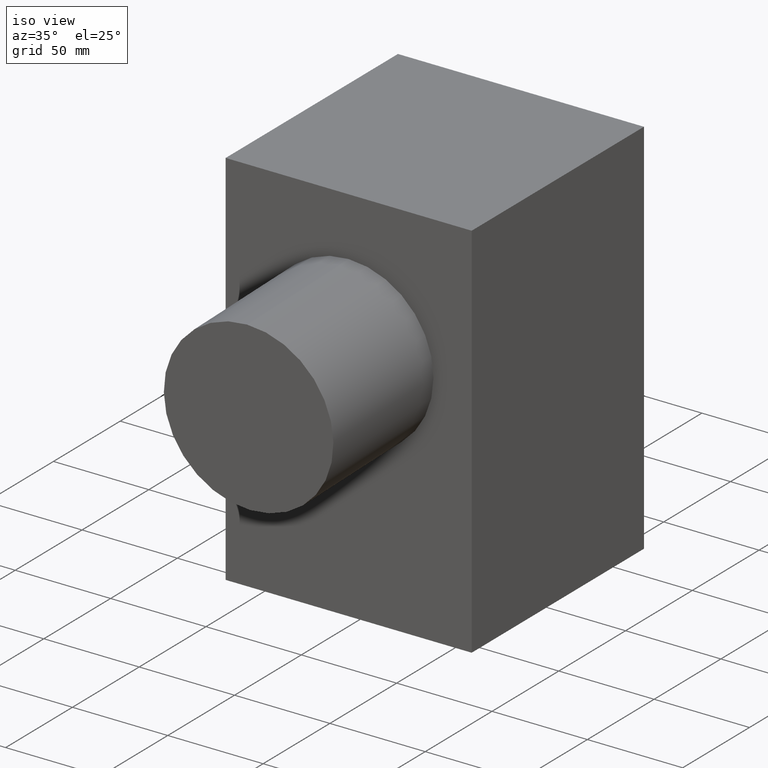
[diagram: clean part render]
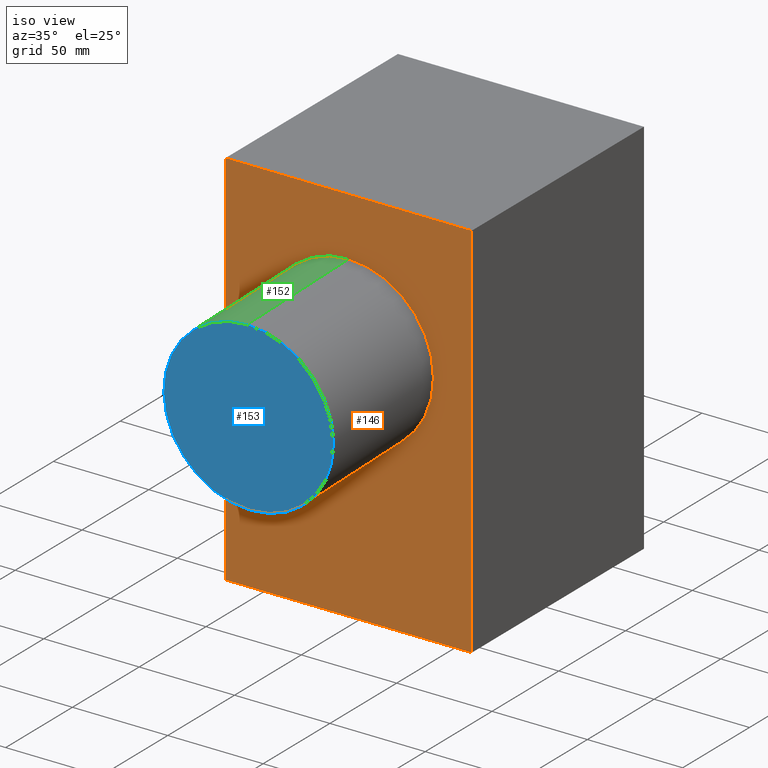
[diagram: same view with three faces highlighted in distinct colors, each labeled with its STEP entity id]
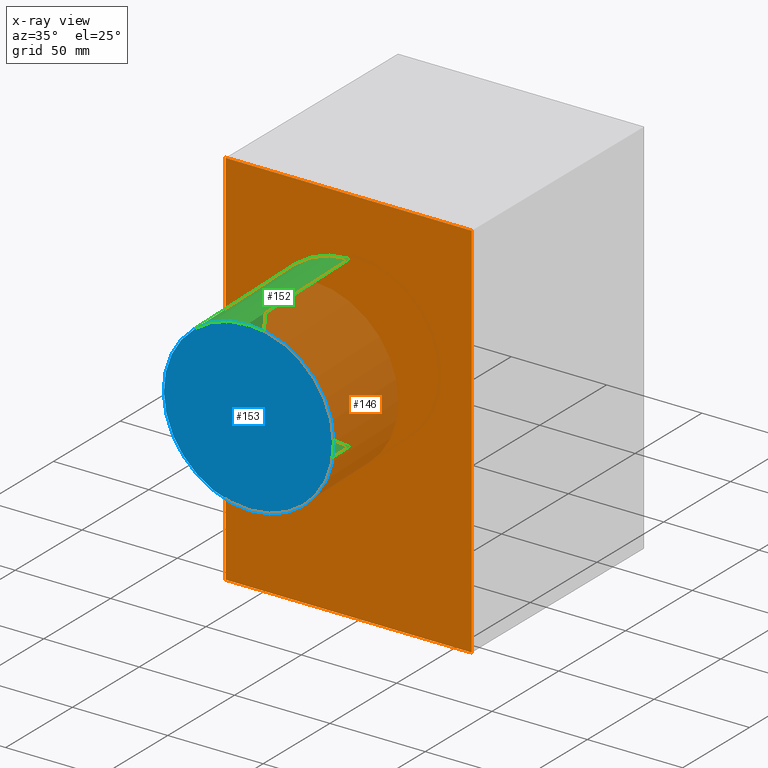
[diagram: x-ray of the same camera — body ghosted, the three highlighted faces saturated]
A machine part, iso view with three faces highlighted in distinct colors.
The next image is the same camera in x-ray (body ghosted, the three faces saturated) — at least one of them is partly hidden behind the body in this view.
Their STEP definitions:

[orange] entity #146 — the highlighted planar face has unit normal (0, -1, 0).
#24=FACE_OUTER_BOUND('',#34,.T.);
#34=EDGE_LOOP('',(#105,#106,#107,#108));
#44=LINE('',#240,#58);
#47=LINE('',#246,#61);
#48=LINE('',#248,#62);
#49=LINE('',#249,#63);
#58=VECTOR('',#195,304.8);
#61=VECTOR('',#200,304.8);
#62=VECTOR('',#201,304.8);
#63=VECTOR('',#202,304.8);
#71=VERTEX_POINT('',#236);
#73=VERTEX_POINT('',#239);
#75=VERTEX_POINT('',#245);
#76=VERTEX_POINT('',#247);
#84=EDGE_CURVE('',#73,#71,#44,.T.);
#87=EDGE_CURVE('',#75,#71,#47,.T.);
#88=EDGE_CURVE('',#76,#75,#48,.T.);
#89=EDGE_CURVE('',#73,#76,#49,.T.);
#105=ORIENTED_EDGE('',*,*,#87,.F.);
#106=ORIENTED_EDGE('',*,*,#88,.F.);
#107=ORIENTED_EDGE('',*,*,#89,.F.);
#108=ORIENTED_EDGE('',*,*,#84,.T.);
#138=PLANE('',#177);
#146=ADVANCED_FACE('',(#24),#138,.T.);
#177=AXIS2_PLACEMENT_3D('',#244,#198,#199);
#195=DIRECTION('',(0.,0.,1.));
#198=DIRECTION('center_axis',(0.,-1.,0.));
#199=DIRECTION('ref_axis',(0.,0.,-1.));
#200=DIRECTION('',(1.,0.,0.));
#201=DIRECTION('',(0.,0.,1.));
#202=DIRECTION('',(-1.,0.,0.));
#236=CARTESIAN_POINT('',(64.5000000000001,-64.5000000000002,0.));
#239=CARTESIAN_POINT('',(64.5000000000001,-64.5000000000002,-200.));
#240=CARTESIAN_POINT('',(64.5000000000001,-64.5000000000002,-200.));
#244=CARTESIAN_POINT('Origin',(-64.5000000000001,-64.5000000000002,0.));
#245=CARTESIAN_POINT('',(-64.5000000000001,-64.5000000000002,0.));
#246=CARTESIAN_POINT('',(-64.5000000000001,-64.5000000000002,0.));
#247=CARTESIAN_POINT('',(-64.5000000000001,-64.5000000000002,-200.));
#248=CARTESIAN_POINT('',(-64.5000000000001,-64.5000000000002,-200.));
#249=CARTESIAN_POINT('',(64.5000000000001,-64.5000000000002,-200.));

[blue] entity #153 — the highlighted planar face has unit normal (0, -0.9997, -0.0262).
#14=CIRCLE('',#184,44.45);
#16=CIRCLE('',#187,44.45);
#31=FACE_OUTER_BOUND('',#41,.T.);
#41=EDGE_LOOP('',(#133,#134));
#81=VERTEX_POINT('',#265);
#82=VERTEX_POINT('',#267);
#97=EDGE_CURVE('',#82,#81,#14,.T.);
#100=EDGE_CURVE('',#81,#82,#16,.T.);
#133=ORIENTED_EDGE('',*,*,#97,.T.);
#134=ORIENTED_EDGE('',*,*,#100,.T.);
#143=PLANE('',#188);
#153=ADVANCED_FACE('',(#31),#143,.T.);
#184=AXIS2_PLACEMENT_3D('',#268,#221,#222);
#187=AXIS2_PLACEMENT_3D('',#272,#228,#229);
#188=AXIS2_PLACEMENT_3D('',#273,#230,#231);
#221=DIRECTION('center_axis',(0.,-0.999657324975557,-0.0261769483078731));
#222=DIRECTION('ref_axis',(-1.61554457443259E-15,-0.026176948307873,0.999657324975557));
#228=DIRECTION('center_axis',(0.,-0.999657324975557,-0.0261769483078731));
#229=DIRECTION('ref_axis',(-1.61554457443259E-15,-0.026176948307873,0.999657324975557));
#230=DIRECTION('center_axis',(0.,-0.999657324975557,-0.0261769483078731));
#231=DIRECTION('ref_axis',(-1.,0.,0.));
#265=CARTESIAN_POINT('',(0.,-140.608727951047,-32.6593877694518));
#267=CARTESIAN_POINT('',(1.23882147289222E-13,-138.281597246477,-121.528923959779));
#268=CARTESIAN_POINT('Origin',(7.18109563335285E-14,-139.445162598762,-77.0941558646153));
#272=CARTESIAN_POINT('Origin',(7.18109563335285E-14,-139.445162598762,-77.0941558646153));
#273=CARTESIAN_POINT('Origin',(0.,-140.608727951047,-32.6593877694518));

[green] entity #152 — the highlighted cylindrical surface (partial cylindrical patch) has radius 44.45 mm, axis along (0, 0.9997, 0.0262).
#15=CIRCLE('',#186,44.45);
#16=CIRCLE('',#187,44.45);
#18=CYLINDRICAL_SURFACE('',#185,44.45);
#30=FACE_OUTER_BOUND('',#40,.T.);
#40=EDGE_LOOP('',(#129,#130,#131,#132));
#55=LINE('',#266,#69);
#56=LINE('',#269,#70);
#69=VECTOR('',#220,304.8);
#70=VECTOR('',#223,304.8);
#79=VERTEX_POINT('',#262);
#80=VERTEX_POINT('',#263);
#81=VERTEX_POINT('',#265);
#82=VERTEX_POINT('',#267);
#96=EDGE_CURVE('',#81,#79,#55,.T.);
#98=EDGE_CURVE('',#80,#82,#56,.T.);
#99=EDGE_CURVE('',#80,#79,#15,.T.);
#100=EDGE_CURVE('',#81,#82,#16,.T.);
#129=ORIENTED_EDGE('',*,*,#99,.F.);
#130=ORIENTED_EDGE('',*,*,#98,.T.);
#131=ORIENTED_EDGE('',*,*,#100,.F.);
#132=ORIENTED_EDGE('',*,*,#96,.T.);
#152=ADVANCED_FACE('',(#30),#18,.T.);
#185=AXIS2_PLACEMENT_3D('',#270,#224,#225);
#186=AXIS2_PLACEMENT_3D('',#271,#226,#227);
#187=AXIS2_PLACEMENT_3D('',#272,#228,#229);
#220=DIRECTION('',(0.,0.999657324975557,0.0261769483078731));
#223=DIRECTION('',(0.,-0.999657324975557,-0.0261769483078729));
#224=DIRECTION('center_axis',(0.,0.999657324975557,0.0261769483078731));
#225=DIRECTION('ref_axis',(-1.61554457443259E-15,-0.026176948307873,0.999657324975557));
#226=DIRECTION('center_axis',(0.,0.999657324975557,0.0261769483078731));
#227=DIRECTION('ref_axis',(-1.61554457443259E-15,-0.026176948307873,0.999657324975557));
#228=DIRECTION('center_axis',(0.,-0.999657324975557,-0.0261769483078731));
#229=DIRECTION('ref_axis',(-1.61554457443259E-15,-0.026176948307873,0.999657324975557));
#262=CARTESIAN_POINT('',(-2.47764294578443E-13,-60.6361419530021,-30.5652319048219));
#263=CARTESIAN_POINT('',(1.43621912667057E-13,-58.3090112484321,-119.434768095149));
#265=CARTESIAN_POINT('',(0.,-140.608727951047,-32.6593877694518));
#266=CARTESIAN_POINT('',(-2.87243825334114E-13,-140.608727951047,-32.6593877694518));
#267=CARTESIAN_POINT('',(1.23882147289222E-13,-138.281597246477,-121.528923959779));
#269=CARTESIAN_POINT('',(1.23882147289222E-13,-58.3090112484321,-119.434768095149));
#270=CARTESIAN_POINT('Origin',(7.18109563335285E-14,-139.445162598762,-77.0941558646153));
#271=CARTESIAN_POINT('Origin',(7.18109563335285E-14,-59.4725766007171,-74.9999999999854));
#272=CARTESIAN_POINT('Origin',(7.18109563335285E-14,-139.445162598762,-77.0941558646153));